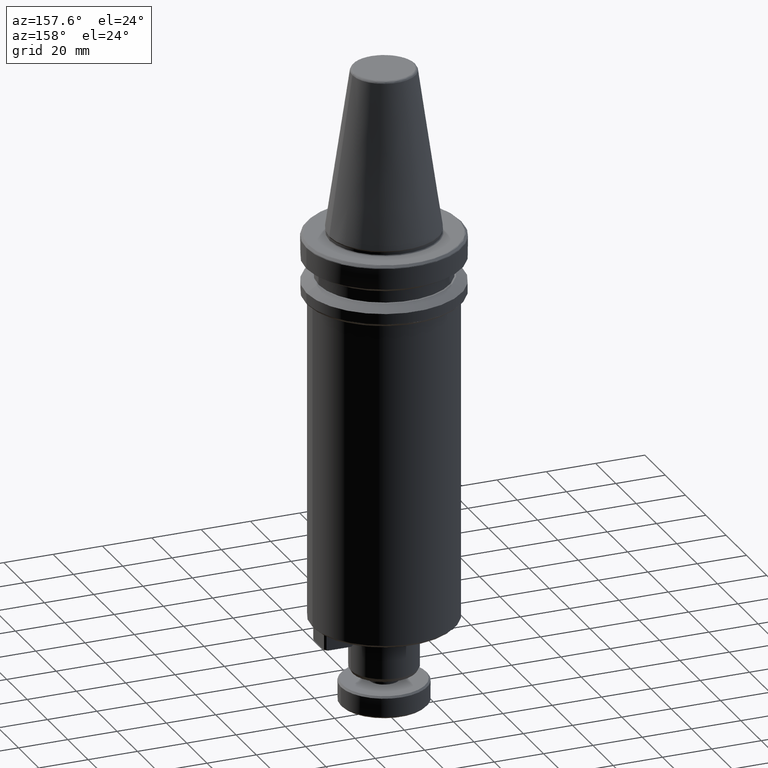
[diagram: clean part render]
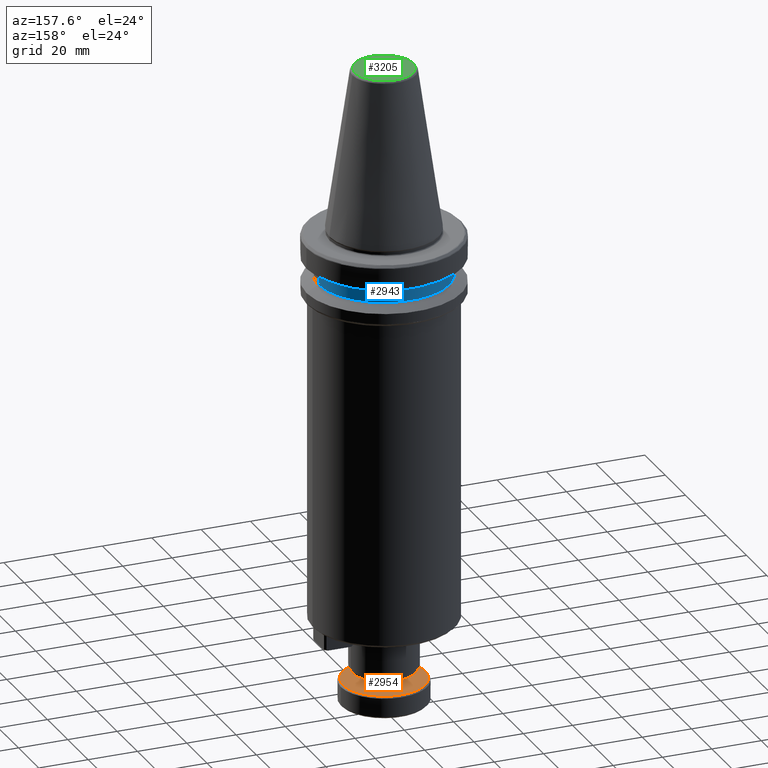
[diagram: same view with three faces highlighted in distinct colors, each labeled with its STEP entity id]
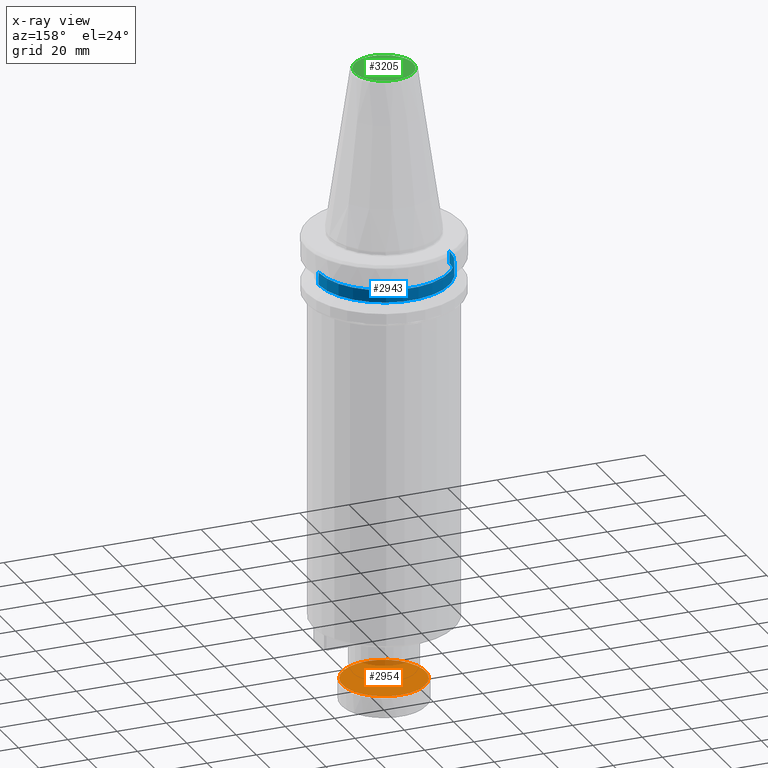
[diagram: x-ray of the same camera — body ghosted, the three highlighted faces saturated]
A machine part, auxiliary view with three faces highlighted in distinct colors.
The next image is the same camera in x-ray (body ghosted, the three faces saturated) — at least one of them is partly hidden behind the body in this view.
Their STEP definitions:

[orange] entity #2954 — the highlighted planar face has unit normal (0, 0, -1).
#95 = CIRCLE ( 'NONE', #2774, 6.000000000000000000 ) ;
#111 = PLANE ( 'NONE',  #2480 ) ;
#172 = VERTEX_POINT ( 'NONE', #2124 ) ;
#336 = EDGE_CURVE ( 'NONE', #1721, #172, #2363, .T. ) ;
#409 = ORIENTED_EDGE ( 'NONE', *, *, #3124, .F. ) ;
#475 = AXIS2_PLACEMENT_3D ( 'NONE', #1680, #1676, #1662 ) ;
#485 = CARTESIAN_POINT ( 'NONE',  ( 0.0000000000000000000, 16.79999999999997600, -185.0000000000000000 ) ) ;
#729 = EDGE_CURVE ( 'NONE', #172, #1721, #95, .T. ) ;
#1015 = DIRECTION ( 'NONE',  ( 0.0000000000000000000, 7.930164461608261400E-016, -1.000000000000000000 ) ) ;
#1022 = DIRECTION ( 'NONE',  ( 1.000000000000000000, 0.0000000000000000000, 0.0000000000000000000 ) ) ;
#1028 = DIRECTION ( 'NONE',  ( 0.0000000000000000000, 0.0000000000000000000, 1.000000000000000000 ) ) ;
#1029 = CARTESIAN_POINT ( 'NONE',  ( 0.0000000000000000000, 0.0000000000000000000, -185.0000000000000000 ) ) ;
#1225 = DIRECTION ( 'NONE',  ( -1.000000000000000000, 0.0000000000000000000, -0.0000000000000000000 ) ) ;
#1419 = EDGE_LOOP ( 'NONE', ( #409, #3076 ) ) ;
#1531 = CARTESIAN_POINT ( 'NONE',  ( -5.999999999999999100, 0.0000000000000000000, -185.0000000000000000 ) ) ;
#1662 = DIRECTION ( 'NONE',  ( 0.0000000000000000000, 1.000000000000000000, 0.0000000000000000000 ) ) ;
#1676 = DIRECTION ( 'NONE',  ( 0.0000000000000000000, 7.930164461608261400E-016, -1.000000000000000000 ) ) ;
#1680 = CARTESIAN_POINT ( 'NONE',  ( 0.0000000000000000000, -5.551115123125832000E-016, -185.0000000000000000 ) ) ;
#1721 = VERTEX_POINT ( 'NONE', #2878 ) ;
#1728 = AXIS2_PLACEMENT_3D ( 'NONE', #1947, #1946, #2338 ) ;
#1887 = DIRECTION ( 'NONE',  ( 0.0000000000000000000, 1.000000000000000000, 0.0000000000000000000 ) ) ;
#1946 = DIRECTION ( 'NONE',  ( 0.0000000000000000000, 0.0000000000000000000, 1.000000000000000000 ) ) ;
#1947 = CARTESIAN_POINT ( 'NONE',  ( 0.0000000000000000000, 0.0000000000000000000, -185.0000000000000000 ) ) ;
#2124 = CARTESIAN_POINT ( 'NONE',  ( 6.000000000000000000, 0.0000000000000000000, -185.0000000000000000 ) ) ;
#2142 = FACE_BOUND ( 'NONE', #3139, .T. ) ;
#2233 = CIRCLE ( 'NONE', #475, 16.79999999999997600 ) ;
#2257 = EDGE_CURVE ( 'NONE', #2721, #2436, #2233, .T. ) ;
#2338 = DIRECTION ( 'NONE',  ( 1.000000000000000000, 0.0000000000000000000, 0.0000000000000000000 ) ) ;
#2346 = ORIENTED_EDGE ( 'NONE', *, *, #336, .F. ) ;
#2357 = AXIS2_PLACEMENT_3D ( 'NONE', #2788, #1015, #1887 ) ;
#2363 = CIRCLE ( 'NONE', #1728, 6.000000000000000000 ) ;
#2412 = ORIENTED_EDGE ( 'NONE', *, *, #729, .F. ) ;
#2436 = VERTEX_POINT ( 'NONE', #485 ) ;
#2480 = AXIS2_PLACEMENT_3D ( 'NONE', #1531, #3072, #1225 ) ;
#2721 = VERTEX_POINT ( 'NONE', #2815 ) ;
#2774 = AXIS2_PLACEMENT_3D ( 'NONE', #1029, #1028, #1022 ) ;
#2788 = CARTESIAN_POINT ( 'NONE',  ( 0.0000000000000000000, -5.551115123125832000E-016, -185.0000000000000000 ) ) ;
#2815 = CARTESIAN_POINT ( 'NONE',  ( 2.100269260537709500E-015, -16.79999999999997600, -185.0000000000000000 ) ) ;
#2878 = CARTESIAN_POINT ( 'NONE',  ( -6.000000000000000000, 7.347880794884119700E-016, -185.0000000000000000 ) ) ;
#2954 = ADVANCED_FACE ( 'NONE', ( #3283, #2142 ), #111, .F. ) ;
#2972 = CIRCLE ( 'NONE', #2357, 16.79999999999997600 ) ;
#3072 = DIRECTION ( 'NONE',  ( 0.0000000000000000000, 0.0000000000000000000, -1.000000000000000000 ) ) ;
#3076 = ORIENTED_EDGE ( 'NONE', *, *, #2257, .F. ) ;
#3124 = EDGE_CURVE ( 'NONE', #2436, #2721, #2972, .T. ) ;
#3139 = EDGE_LOOP ( 'NONE', ( #2412, #2346 ) ) ;
#3283 = FACE_OUTER_BOUND ( 'NONE', #1419, .T. ) ;

[blue] entity #2943 — the highlighted cylindrical surface (partial cylindrical patch) has radius 26.5 mm, axis along (0, 0, 1).
#53 = ORIENTED_EDGE ( 'NONE', *, *, #2079, .T. ) ;
#163 = EDGE_CURVE ( 'NONE', #339, #2351, #1735, .T. ) ;
#177 = AXIS2_PLACEMENT_3D ( 'NONE', #2041, #2035, #2032 ) ;
#226 = VECTOR ( 'NONE', #2107, 1000.000000000000000 ) ;
#339 = VERTEX_POINT ( 'NONE', #2027 ) ;
#393 = AXIS2_PLACEMENT_3D ( 'NONE', #2405, #2402, #2399 ) ;
#406 = AXIS2_PLACEMENT_3D ( 'NONE', #1237, #645, #2929 ) ;
#528 = EDGE_CURVE ( 'NONE', #3415, #2050, #2712, .T. ) ;
#645 = DIRECTION ( 'NONE',  ( 0.0000000000000000000, 0.0000000000000000000, 1.000000000000000000 ) ) ;
#971 = CARTESIAN_POINT ( 'NONE',  ( -26.50000000000000000, 3.245314017740485800E-015, -14.10000000000000100 ) ) ;
#1237 = CARTESIAN_POINT ( 'NONE',  ( 0.0000000000000000000, 0.0000000000000000000, 69.75694866325665100 ) ) ;
#1303 = CYLINDRICAL_SURFACE ( 'NONE', #406, 26.50000000000000000 ) ;
#1700 = DIRECTION ( 'NONE',  ( 0.0000000000000000000, 0.0000000000000000000, 1.000000000000000000 ) ) ;
#1707 = CARTESIAN_POINT ( 'NONE',  ( 26.50000000000000000, 0.0000000000000000000, 69.75694866325665100 ) ) ;
#1735 = LINE ( 'NONE', #2221, #226 ) ;
#1753 = CIRCLE ( 'NONE', #177, 26.50000000000000000 ) ;
#1950 = EDGE_CURVE ( 'NONE', #339, #3415, #2108, .T. ) ;
#2027 = CARTESIAN_POINT ( 'NONE',  ( -26.50000000000000000, 3.245314017740485800E-015, -19.10000000000000500 ) ) ;
#2032 = DIRECTION ( 'NONE',  ( 1.000000000000000000, 0.0000000000000000000, 0.0000000000000000000 ) ) ;
#2035 = DIRECTION ( 'NONE',  ( -0.0000000000000000000, -0.0000000000000000000, -1.000000000000000000 ) ) ;
#2041 = CARTESIAN_POINT ( 'NONE',  ( 0.0000000000000000000, 0.0000000000000000000, -14.10000000000000100 ) ) ;
#2042 = VECTOR ( 'NONE', #1700, 1000.000000000000000 ) ;
#2050 = VERTEX_POINT ( 'NONE', #2116 ) ;
#2079 = EDGE_CURVE ( 'NONE', #2351, #2050, #1753, .T. ) ;
#2107 = DIRECTION ( 'NONE',  ( 0.0000000000000000000, 0.0000000000000000000, 1.000000000000000000 ) ) ;
#2108 = CIRCLE ( 'NONE', #393, 26.50000000000000000 ) ;
#2116 = CARTESIAN_POINT ( 'NONE',  ( 26.50000000000000000, 0.0000000000000000000, -14.10000000000000100 ) ) ;
#2221 = CARTESIAN_POINT ( 'NONE',  ( -26.50000000000000000, 3.245314017740485800E-015, 69.75694866325665100 ) ) ;
#2351 = VERTEX_POINT ( 'NONE', #971 ) ;
#2399 = DIRECTION ( 'NONE',  ( 1.000000000000000000, 0.0000000000000000000, 0.0000000000000000000 ) ) ;
#2402 = DIRECTION ( 'NONE',  ( -0.0000000000000000000, -0.0000000000000000000, -1.000000000000000000 ) ) ;
#2405 = CARTESIAN_POINT ( 'NONE',  ( 0.0000000000000000000, 0.0000000000000000000, -19.10000000000000500 ) ) ;
#2627 = EDGE_LOOP ( 'NONE', ( #2637, #3294, #53, #3088 ) ) ;
#2637 = ORIENTED_EDGE ( 'NONE', *, *, #1950, .F. ) ;
#2712 = LINE ( 'NONE', #1707, #2042 ) ;
#2861 = CARTESIAN_POINT ( 'NONE',  ( 26.50000000000000000, 0.0000000000000000000, -19.10000000000000500 ) ) ;
#2929 = DIRECTION ( 'NONE',  ( 1.000000000000000000, 0.0000000000000000000, 0.0000000000000000000 ) ) ;
#2943 = ADVANCED_FACE ( 'NONE', ( #3345 ), #1303, .T. ) ;
#3088 = ORIENTED_EDGE ( 'NONE', *, *, #528, .F. ) ;
#3294 = ORIENTED_EDGE ( 'NONE', *, *, #163, .T. ) ;
#3345 = FACE_OUTER_BOUND ( 'NONE', #2627, .T. ) ;
#3415 = VERTEX_POINT ( 'NONE', #2861 ) ;

[green] entity #3205 — the highlighted planar face has unit normal (0, 0, 1).
#150 = CARTESIAN_POINT ( 'NONE',  ( -11.82266672057006900, 1.472095658865788800E-015, 65.40000000000002000 ) ) ;
#198 =( BOUNDED_CURVE ( )  B_SPLINE_CURVE ( 3, ( #936, #940, #945, #929 ),
 .UNSPECIFIED., .F., .F. ) 
 B_SPLINE_CURVE_WITH_KNOTS ( ( 4, 4 ),
 ( 0.0000000000000000000, 1.000000000000000000 ),
 .UNSPECIFIED. ) 
 CURVE ( )  GEOMETRIC_REPRESENTATION_ITEM ( )  RATIONAL_B_SPLINE_CURVE ( ( 1.000000000000000000, 0.3333333333333333700, 0.3333333333333333700, 1.000000000000000000 ) ) 
 REPRESENTATION_ITEM ( '' )  );
#280 = AXIS2_PLACEMENT_3D ( 'NONE', #1163, #3267, #514 ) ;
#300 = CARTESIAN_POINT ( 'NONE',  ( 11.82266672057006900, 0.0000000000000000000, 65.40000000000002000 ) ) ;
#514 = DIRECTION ( 'NONE',  ( 1.000000000000000000, 0.0000000000000000000, -0.0000000000000000000 ) ) ;
#519 = CARTESIAN_POINT ( 'NONE',  ( 11.82266672057006900, 0.0000000000000000000, 65.40000000000002000 ) ) ;
#521 = CARTESIAN_POINT ( 'NONE',  ( 11.82266672057006900, 23.64533344114013500, 65.40000000000003400 ) ) ;
#536 = CARTESIAN_POINT ( 'NONE',  ( -11.82266672057006900, 1.472095658865788800E-015, 65.40000000000002000 ) ) ;
#598 = CARTESIAN_POINT ( 'NONE',  ( -11.82266672057006800, 23.64533344114013500, 65.40000000000003400 ) ) ;
#618 = FACE_OUTER_BOUND ( 'NONE', #1851, .T. ) ;
#774 = EDGE_CURVE ( 'NONE', #1133, #2934, #198, .T. ) ;
#929 = CARTESIAN_POINT ( 'NONE',  ( -11.82266672057006900, 1.472095658865788800E-015, 65.40000000000002000 ) ) ;
#936 = CARTESIAN_POINT ( 'NONE',  ( 11.82266672057006900, 0.0000000000000000000, 65.40000000000002000 ) ) ;
#940 = CARTESIAN_POINT ( 'NONE',  ( 11.82266672057006900, -23.64533344114013500, 65.40000000000003400 ) ) ;
#945 = CARTESIAN_POINT ( 'NONE',  ( -11.82266672057007300, -23.64533344114013500, 65.40000000000003400 ) ) ;
#996 = EDGE_CURVE ( 'NONE', #2934, #1133, #3402, .T. ) ;
#1133 = VERTEX_POINT ( 'NONE', #300 ) ;
#1163 = CARTESIAN_POINT ( 'NONE',  ( 0.0000000000000000000, -1.535368194134972500E-013, 65.40000000000002000 ) ) ;
#1439 = ORIENTED_EDGE ( 'NONE', *, *, #774, .F. ) ;
#1450 = PLANE ( 'NONE',  #280 ) ;
#1851 = EDGE_LOOP ( 'NONE', ( #3390, #1439 ) ) ;
#2934 = VERTEX_POINT ( 'NONE', #150 ) ;
#3205 = ADVANCED_FACE ( 'NONE', ( #618 ), #1450, .T. ) ;
#3267 = DIRECTION ( 'NONE',  ( 0.0000000000000000000, 0.0000000000000000000, 1.000000000000000000 ) ) ;
#3390 = ORIENTED_EDGE ( 'NONE', *, *, #996, .F. ) ;
#3402 =( BOUNDED_CURVE ( )  B_SPLINE_CURVE ( 3, ( #536, #598, #521, #519 ),
 .UNSPECIFIED., .F., .F. ) 
 B_SPLINE_CURVE_WITH_KNOTS ( ( 4, 4 ),
 ( 0.0000000000000000000, 1.000000000000000000 ),
 .UNSPECIFIED. ) 
 CURVE ( )  GEOMETRIC_REPRESENTATION_ITEM ( )  RATIONAL_B_SPLINE_CURVE ( ( 1.000000000000000000, 0.3333333333333333700, 0.3333333333333333700, 1.000000000000000000 ) ) 
 REPRESENTATION_ITEM ( '' )  );